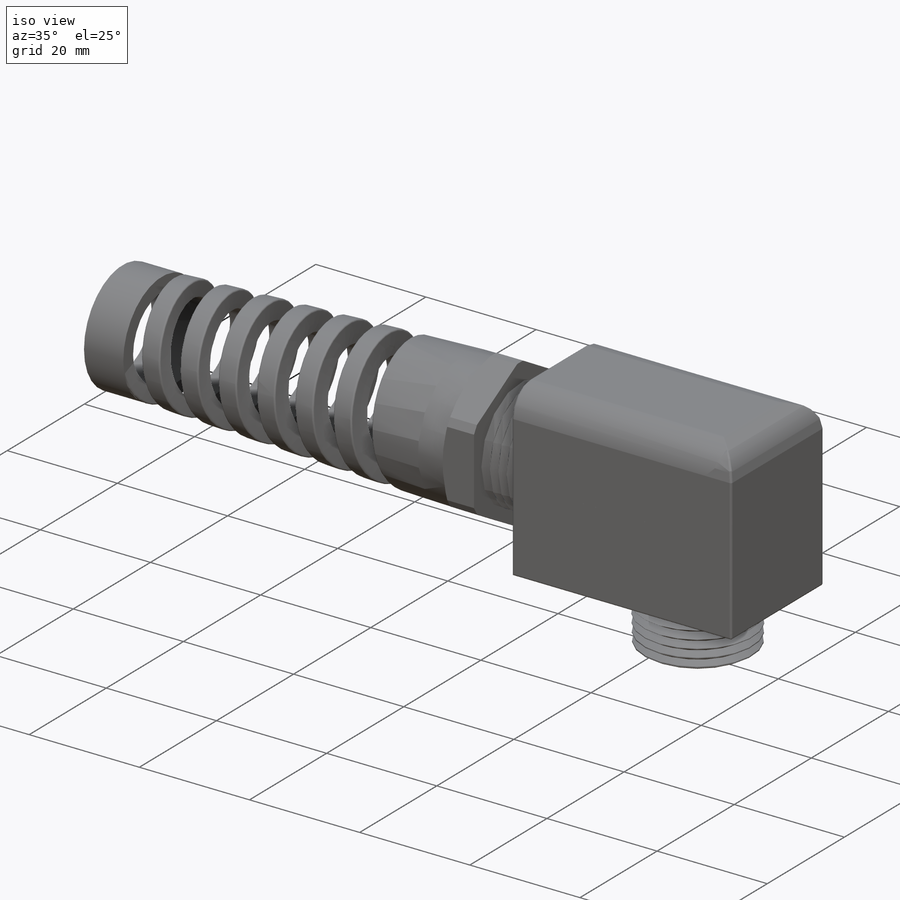
[diagram: iso view]
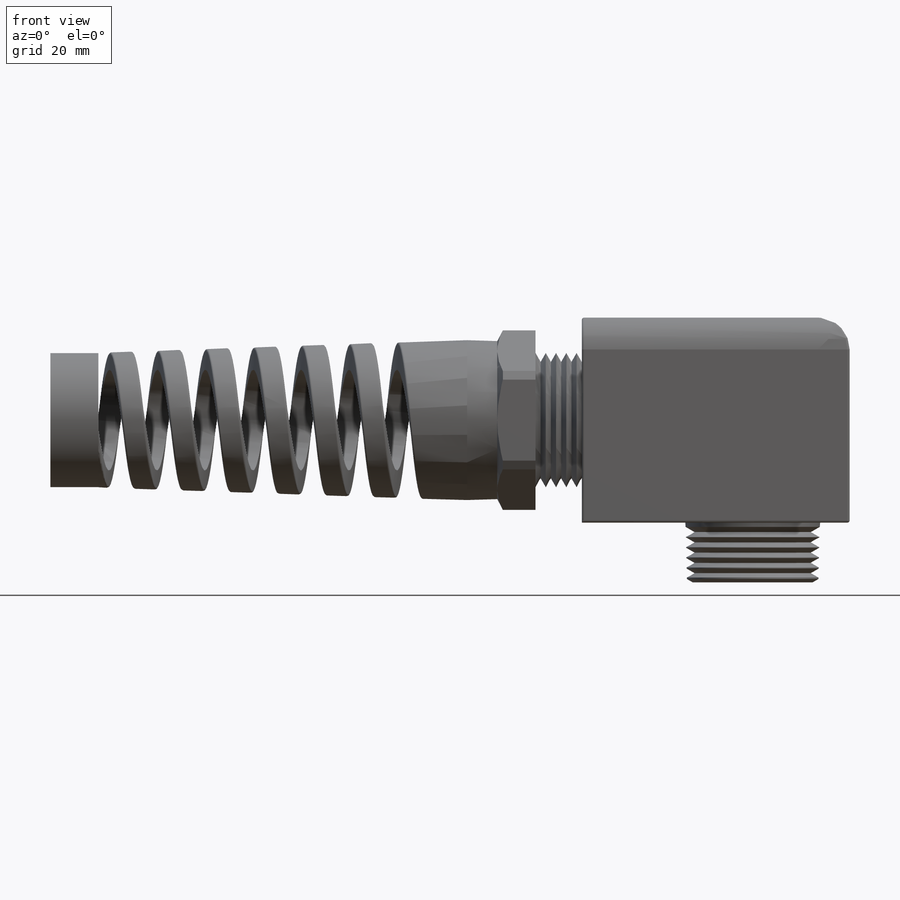
[diagram: front view]
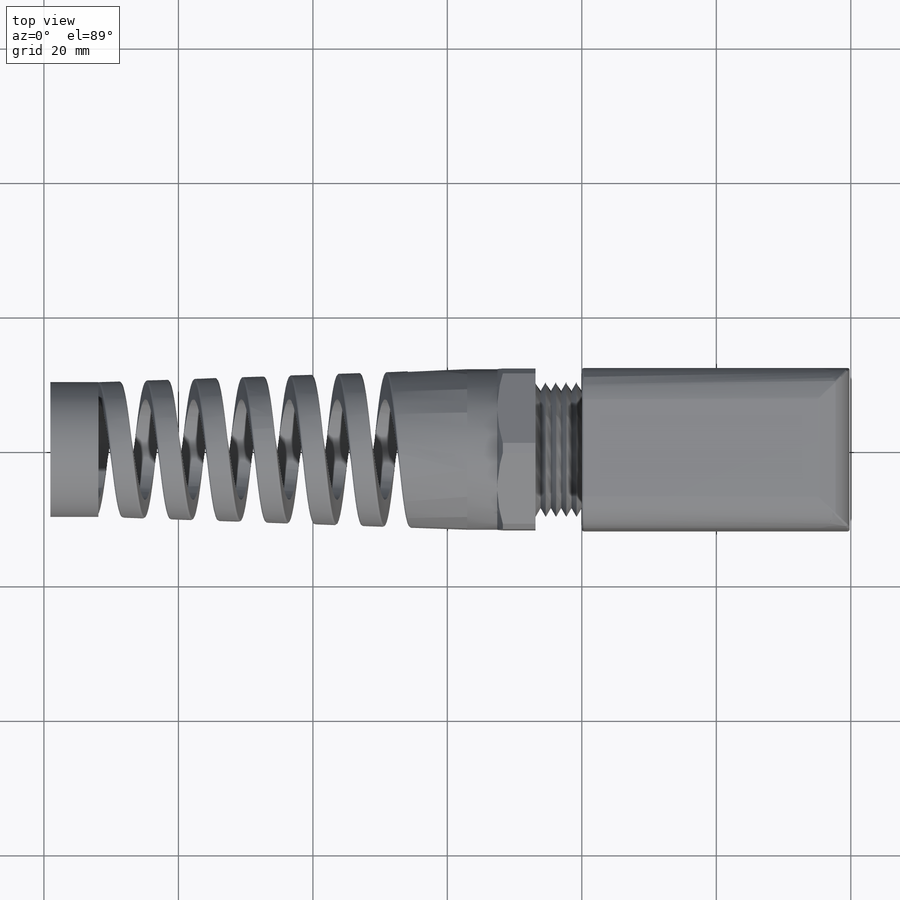
[diagram: top view]
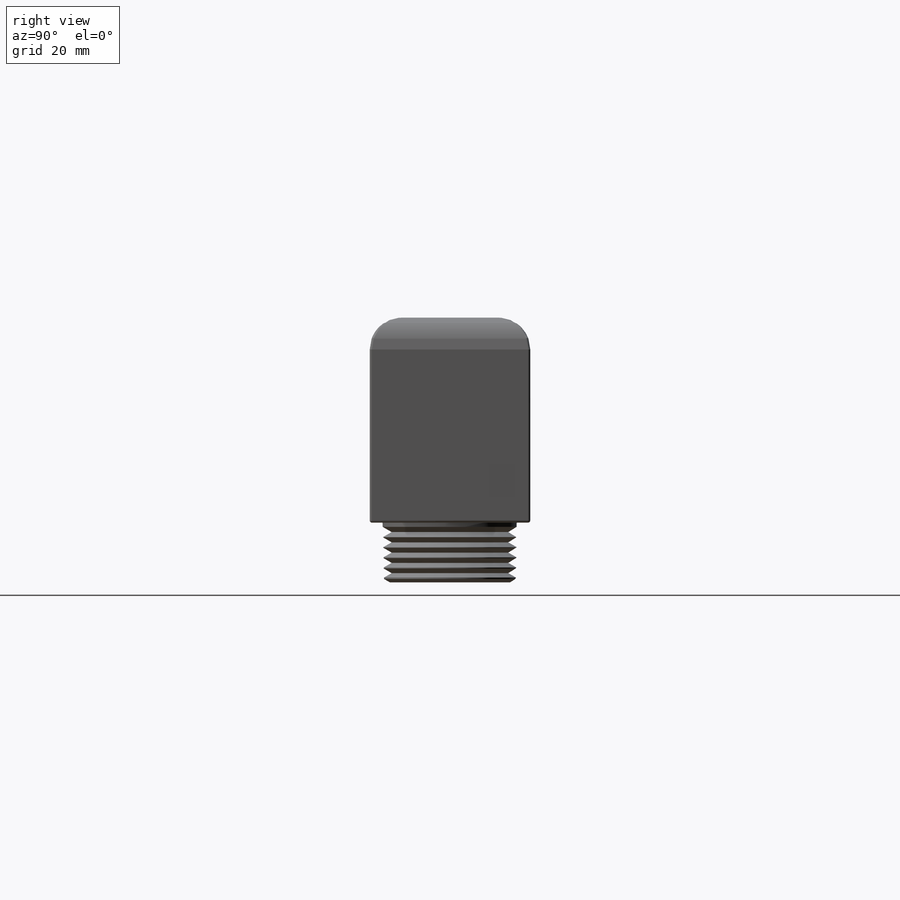
[diagram: right view]
SOLIDWORKS PART (.sldprt)
format: sldprt  version: not decoded by parser v0  size: 908,800 bytes
history: native  units: mm
features: sketch x19, revolve x6, fillet x6, extrude x4, cut_extrude x2, sweep x2, cut_revolve x2, pattern_linear x2, material x1, thread x1, helix x1, plane x1 (+14 scaffold rows collapsed)
feature tree (61):
  scaffold x14  (default folders/planes/origin — collapsed)
  material  "Material <not specified>"
  sketch  "Sketch1"  dims[c1.D1=5.08mm c1.NPT=20.066mm c1.NutWidth1=3.1496mm c1.D4=~7.312015mm c2.D4=~95.974323deg c3.D4=~7.312015mm c4.D4=1.5deg c4.D5=~20.225671mm c4.D6=~2.114041mm c5.D5=~15.850235mm c5.D1=6.35mm c5.D6=5.08mm c6.D1=6.35mm c6.D6=~2.114041mm c6.D5=7.874mm c6.D=7.874mm c7.D5=12.7mm c7.WF+=~16.78432mm c7.CableDia=8.89mm c7.D8=~6.223041mm c7.NutWidth2=~7.866418mm c8.D8=15.24mm c8.A=21.336mm c8.B=21.082mm c8.B-D=~16.98625mm c8.D1=~26.74112mm c8.B-=17.0688mm c8.NutWidth=5.6896mm c8.D2=~4.491789mm c8.D3=16.0528mm]
  revolve  "Revolve1"  [1 undecoded]
  thread  "Cosmetic Thread1"  Diameter=19.86534mm  [1 undecoded]
  sketch  "Sketch2"  dims[wrechflats=23.876mm]
  cut_extrude  "Cut-Extrude1"  [1 undecoded]
  sketch  "Sketch3"
  cut_extrude  "Cut-Extrude2"  [1 undecoded]
  sketch  "Sketch9"  dims[c1.R=~3.160889mm c1.D1=~27.32432mm c1.D=30.48mm c1.B=56.896mm c2.D1=~29.69395mm c3.D1=45.0deg c4.D1=~47.557046mm c5.D1=45.0deg c5.D3=12.8016mm c5.D4=3.9116mm]
  extrude  "Extrude3"  [1 undecoded]
  sketch  "Sketch19"
  revolve  "Revolve5"  Angle=360deg
  fillet  "Fillet1"  Radius=3.729789mm r1=3.729789mm
  sketch  "Sketch10"  dims[D1=30.48mm]
  extrude  "Extrude4"  [1 undecoded]
  fillet  "Fillet4"  Radius=4.741333mm
  fillet  "Fillet5"  Radius=0.321446mm
  sketch  "Sketch11"  dims[c1.NPT=~13.557284mm c1.CableDia=~7.781328mm c1.D1=9.144mm c2.CableDia=~8.527143mm c2.NPT=20.066mm c2.E=8.89mm c2.D2=~15.080167mm c3.D2=91.5deg c3.D1=25.0825mm c3.CableDia=8.89mm c3.D3=~34.545681mm c4.D3=3.0deg]
  revolve  "Revolve3"  Angle=360deg
  sketch  "Sketch13"  dims[D1=0.0mm]
  sketch  "Sketch14"
  sketch  "Sketch15"
  sweep  "Cut-Sweep2"
  sketch  "Sketch18"  dims[D2=0.635mm D1=0.762mm D3=2.54mm]
  revolve  "Revolve4"  Angle=360deg
  sketch  "Sketch20"  dims[c1.D2=0.635mm c1.D4=0.635mm c1.D1=2.54mm c2.D2=2.54mm c2.D3=0.762mm]
  revolve  "Revolve6"  Angle=360deg
  sketch  "Sketch16"  dims[c1.D1=~1.612707mm c2.D1=60.0deg c2.D2=~1.884713mm c3.D2=30.0deg c3.H=~1.319822mm]
  cut_revolve  "Cut-Revolve1"  Angle=360deg
  pattern_linear  "LPattern1"  Count1=5 Count2=1 Spacing1=1.52654mm Spacing2=50mm Numbers=5 Pitch=1.52654mm
  sketch  "Sketch17"  dims[c1.D1=20.066mm c2.D1=30.0deg c2.D2=~1.958102mm c3.D2=60.0deg c3.H=~1.319822mm c3.D4=0.635mm c3.D1=~39.505754mm c4.D1=30.0deg c4.D5=1.016mm c4.D3=16.002mm]
  cut_revolve  "Cut-Revolve2"  Angle=360deg
  pattern_linear  "LPattern2"  Count1=6 Count2=1 Spacing1=1.52654mm Spacing2=50mm Num=6 Pitch=1.52654mm
  sketch  "Sketch4"  dims[c1.C=~49.23282mm c1.D1=~38.903174mm c2.D1=2.0deg c2.C=79.1337mm c3.C=79.1337mm c3.Cable=7.874mm c4.C=~111.73968mm c4.D2=2.54mm]
  revolve  "Revolve2"  Angle=360deg
  sketch  "Sketch5"  dims[D1=0.0mm]
  helix  "Helix/Spiral2"  Pitch=46.51513mm rev=6.521739 tapper=2deg
  plane  "Plane1"
  sketch  "Sketch6"  dims[c1.D1=~1.526035mm c2.D1=95.0deg c2.D2=2.54mm c2.D3=~3.839058mm c3.D1=~7.645465mm c4.D1=100.0deg c5.D1=~7.644416mm c6.D1=91.5deg]
  sweep  "Cut-Sweep1"
  sketch  "Sketch7"  dims[D1=0.0mm]
  extrude  "Extrude1"  Depth=7.72668mm
  sketch  "Sketch8"
  extrude  "Extrude2"  Depth=7.13232mm
  fillet  "Fillet2"  Radius=0.254mm
  fillet  "Fillet6"  Radius=0.254mm
  fillet  "Fillet7"  Radius=0.254mm
decode coverage: 33 of 45 modeling features carry decoded parameters
note: ~ marks probable driven/reference dimensions
note: 6 parameter values undecoded
summary: no parameter record found for 5 features
note: suppression state not decoded; provenance and decode notes live in map.json
